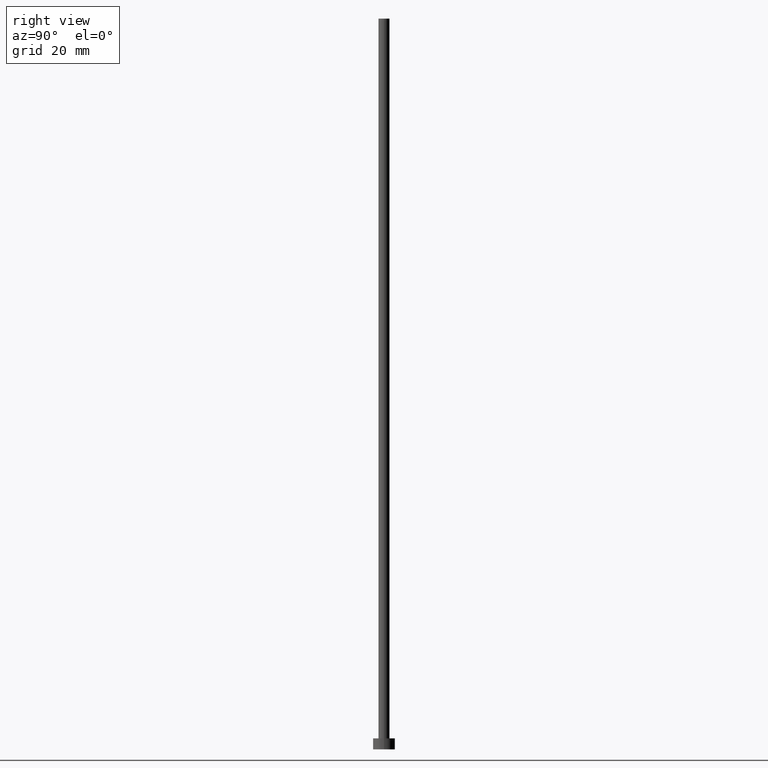
[diagram: clean part render]
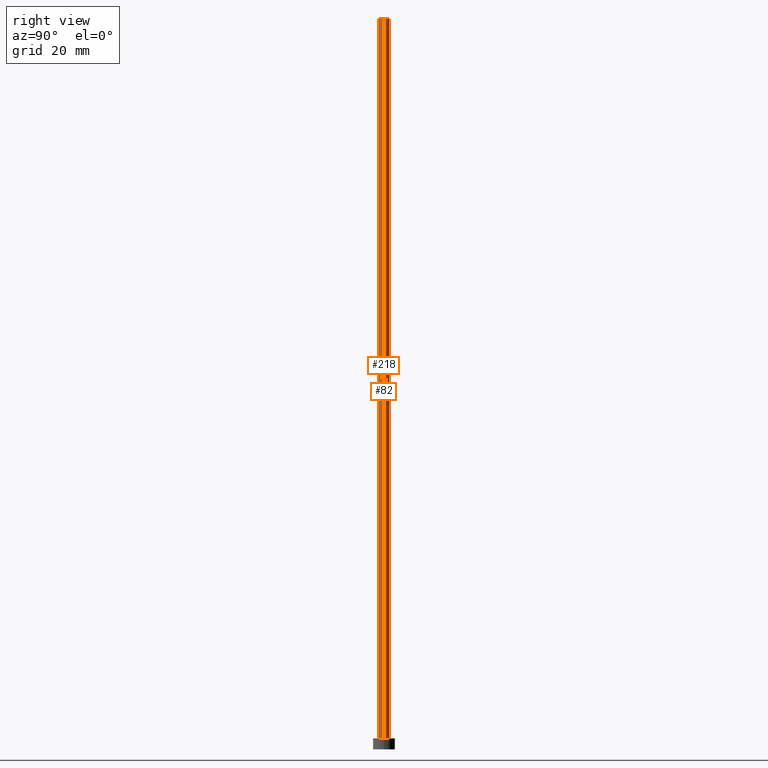
[diagram: same view with one multi-face feature highlighted, each face labeled with its STEP entity id]
A machine part, right view. The highlighted faces form ONE feature: a constant-radius fillet chain: 2 tangent blend faces with common blend radius 1.5 mm. The faces share edges in the B-rep.
Their STEP definitions:
[1] entity #82 (Cylinder):
#4 = CIRCLE ( 'NONE', #165, 1.500000000000000222 ) ;
#6 = ORIENTED_EDGE ( 'NONE', *, *, #231, .T. ) ;
#8 = CARTESIAN_POINT ( 'NONE',  ( -1.500000000000000222, 0.000000000000000000, 200.0000000000000000 ) ) ;
#11 = ORIENTED_EDGE ( 'NONE', *, *, #237, .F. ) ;
#15 = CARTESIAN_POINT ( 'NONE',  ( 0.000000000000000000, 0.000000000000000000, 200.0000000000000000 ) ) ;
#21 = CARTESIAN_POINT ( 'NONE',  ( 0.000000000000000000, 0.000000000000000000, 200.0000000000000000 ) ) ;
#38 = CARTESIAN_POINT ( 'NONE',  ( 1.500000000000000222, 1.836970198721030181E-16, 200.0000000000000000 ) ) ;
#43 = VERTEX_POINT ( 'NONE', #184 ) ;
#45 = VECTOR ( 'NONE', #236, 1000.000000000000000 ) ;
#49 = ORIENTED_EDGE ( 'NONE', *, *, #135, .T. ) ;
#57 = DIRECTION ( 'NONE',  ( 1.000000000000000000, 0.000000000000000000, 0.000000000000000000 ) ) ;
#69 = CARTESIAN_POINT ( 'NONE',  ( -1.500000000000000222, 0.000000000000000000, 3.000000000000000000 ) ) ;
#77 = VERTEX_POINT ( 'NONE', #69 ) ;
#79 = LINE ( 'NONE', #173, #45 ) ;
#81 = DIRECTION ( 'NONE',  ( 1.000000000000000000, 0.000000000000000000, 0.000000000000000000 ) ) ;
#82 = ADVANCED_FACE ( 'NONE', ( #183 ), #228, .T. ) ;
#89 = VERTEX_POINT ( 'NONE', #223 ) ;
#100 = DIRECTION ( 'NONE',  ( 0.000000000000000000, 0.000000000000000000, 1.000000000000000000 ) ) ;
#110 = DIRECTION ( 'NONE',  ( 0.000000000000000000, 0.000000000000000000, 1.000000000000000000 ) ) ;
#113 = DIRECTION ( 'NONE',  ( -1.000000000000000000, 0.000000000000000000, 0.000000000000000000 ) ) ;
#118 = ORIENTED_EDGE ( 'NONE', *, *, #156, .F. ) ;
#125 = EDGE_LOOP ( 'NONE', ( #118, #49, #6, #11 ) ) ;
#126 = AXIS2_PLACEMENT_3D ( 'NONE', #15, #144, #113 ) ;
#135 = EDGE_CURVE ( 'NONE', #43, #89, #172, .T. ) ;
#144 = DIRECTION ( 'NONE',  ( -0.000000000000000000, -0.000000000000000000, -1.000000000000000000 ) ) ;
#156 = EDGE_CURVE ( 'NONE', #43, #180, #171, .T. ) ;
#165 = AXIS2_PLACEMENT_3D ( 'NONE', #239, #110, #81 ) ;
#171 = CIRCLE ( 'NONE', #199, 1.500000000000000222 ) ;
#172 = LINE ( 'NONE', #38, #187 ) ;
#173 = CARTESIAN_POINT ( 'NONE',  ( -1.500000000000000222, 0.000000000000000000, 200.0000000000000000 ) ) ;
#180 = VERTEX_POINT ( 'NONE', #8 ) ;
#183 = FACE_OUTER_BOUND ( 'NONE', #125, .T. ) ;
#184 = CARTESIAN_POINT ( 'NONE',  ( 1.500000000000000222, 1.836970198721030181E-16, 200.0000000000000000 ) ) ;
#187 = VECTOR ( 'NONE', #208, 1000.000000000000000 ) ;
#199 = AXIS2_PLACEMENT_3D ( 'NONE', #21, #100, #57 ) ;
#208 = DIRECTION ( 'NONE',  ( -0.000000000000000000, -0.000000000000000000, -1.000000000000000000 ) ) ;
#223 = CARTESIAN_POINT ( 'NONE',  ( 1.500000000000000222, 1.836970198721030181E-16, 3.000000000000000000 ) ) ;
#228 = CYLINDRICAL_SURFACE ( 'NONE', #126, 1.500000000000000222 ) ;
#231 = EDGE_CURVE ( 'NONE', #89, #77, #4, .T. ) ;
#236 = DIRECTION ( 'NONE',  ( -0.000000000000000000, -0.000000000000000000, -1.000000000000000000 ) ) ;
#237 = EDGE_CURVE ( 'NONE', #180, #77, #79, .T. ) ;
#239 = CARTESIAN_POINT ( 'NONE',  ( 0.000000000000000000, 0.000000000000000000, 3.000000000000000000 ) ) ;
[2] entity #218 (Cylinder):
#8 = CARTESIAN_POINT ( 'NONE',  ( -1.500000000000000222, 0.000000000000000000, 200.0000000000000000 ) ) ;
#14 = EDGE_CURVE ( 'NONE', #180, #43, #105, .T. ) ;
#20 = ORIENTED_EDGE ( 'NONE', *, *, #135, .F. ) ;
#36 = DIRECTION ( 'NONE',  ( 1.000000000000000000, 0.000000000000000000, 0.000000000000000000 ) ) ;
#38 = CARTESIAN_POINT ( 'NONE',  ( 1.500000000000000222, 1.836970198721030181E-16, 200.0000000000000000 ) ) ;
#43 = VERTEX_POINT ( 'NONE', #184 ) ;
#45 = VECTOR ( 'NONE', #236, 1000.000000000000000 ) ;
#47 = DIRECTION ( 'NONE',  ( -1.000000000000000000, 0.000000000000000000, 0.000000000000000000 ) ) ;
#69 = CARTESIAN_POINT ( 'NONE',  ( -1.500000000000000222, 0.000000000000000000, 3.000000000000000000 ) ) ;
#77 = VERTEX_POINT ( 'NONE', #69 ) ;
#79 = LINE ( 'NONE', #173, #45 ) ;
#83 = CYLINDRICAL_SURFACE ( 'NONE', #248, 1.500000000000000222 ) ;
#89 = VERTEX_POINT ( 'NONE', #223 ) ;
#104 = DIRECTION ( 'NONE',  ( -0.000000000000000000, -0.000000000000000000, -1.000000000000000000 ) ) ;
#105 = CIRCLE ( 'NONE', #246, 1.500000000000000222 ) ;
#115 = DIRECTION ( 'NONE',  ( 0.000000000000000000, 0.000000000000000000, 1.000000000000000000 ) ) ;
#116 = FACE_OUTER_BOUND ( 'NONE', #151, .T. ) ;
#135 = EDGE_CURVE ( 'NONE', #43, #89, #172, .T. ) ;
#138 = ORIENTED_EDGE ( 'NONE', *, *, #14, .F. ) ;
#141 = EDGE_CURVE ( 'NONE', #77, #89, #255, .T. ) ;
#150 = ORIENTED_EDGE ( 'NONE', *, *, #237, .T. ) ;
#151 = EDGE_LOOP ( 'NONE', ( #20, #138, #150, #157 ) ) ;
#157 = ORIENTED_EDGE ( 'NONE', *, *, #141, .T. ) ;
#172 = LINE ( 'NONE', #38, #187 ) ;
#173 = CARTESIAN_POINT ( 'NONE',  ( -1.500000000000000222, 0.000000000000000000, 200.0000000000000000 ) ) ;
#180 = VERTEX_POINT ( 'NONE', #8 ) ;
#184 = CARTESIAN_POINT ( 'NONE',  ( 1.500000000000000222, 1.836970198721030181E-16, 200.0000000000000000 ) ) ;
#187 = VECTOR ( 'NONE', #208, 1000.000000000000000 ) ;
#206 = DIRECTION ( 'NONE',  ( 1.000000000000000000, 0.000000000000000000, 0.000000000000000000 ) ) ;
#208 = DIRECTION ( 'NONE',  ( -0.000000000000000000, -0.000000000000000000, -1.000000000000000000 ) ) ;
#212 = CARTESIAN_POINT ( 'NONE',  ( 0.000000000000000000, 0.000000000000000000, 3.000000000000000000 ) ) ;
#214 = AXIS2_PLACEMENT_3D ( 'NONE', #212, #115, #36 ) ;
#216 = CARTESIAN_POINT ( 'NONE',  ( 0.000000000000000000, 0.000000000000000000, 200.0000000000000000 ) ) ;
#218 = ADVANCED_FACE ( 'NONE', ( #116 ), #83, .T. ) ;
#223 = CARTESIAN_POINT ( 'NONE',  ( 1.500000000000000222, 1.836970198721030181E-16, 3.000000000000000000 ) ) ;
#232 = CARTESIAN_POINT ( 'NONE',  ( 0.000000000000000000, 0.000000000000000000, 200.0000000000000000 ) ) ;
#236 = DIRECTION ( 'NONE',  ( -0.000000000000000000, -0.000000000000000000, -1.000000000000000000 ) ) ;
#237 = EDGE_CURVE ( 'NONE', #180, #77, #79, .T. ) ;
#246 = AXIS2_PLACEMENT_3D ( 'NONE', #232, #247, #206 ) ;
#247 = DIRECTION ( 'NONE',  ( 0.000000000000000000, 0.000000000000000000, 1.000000000000000000 ) ) ;
#248 = AXIS2_PLACEMENT_3D ( 'NONE', #216, #104, #47 ) ;
#255 = CIRCLE ( 'NONE', #214, 1.500000000000000222 ) ;